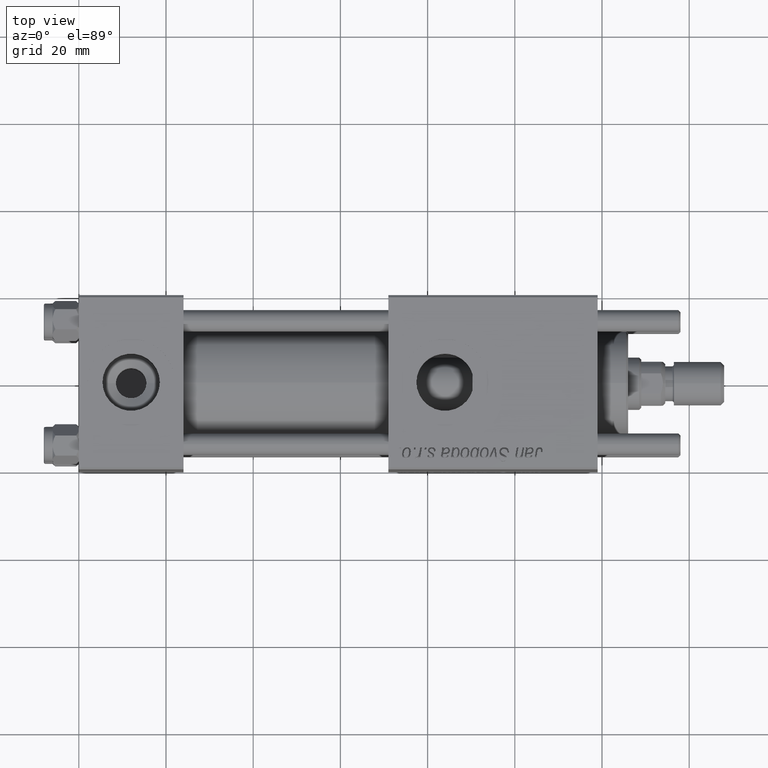
[diagram: clean part render]
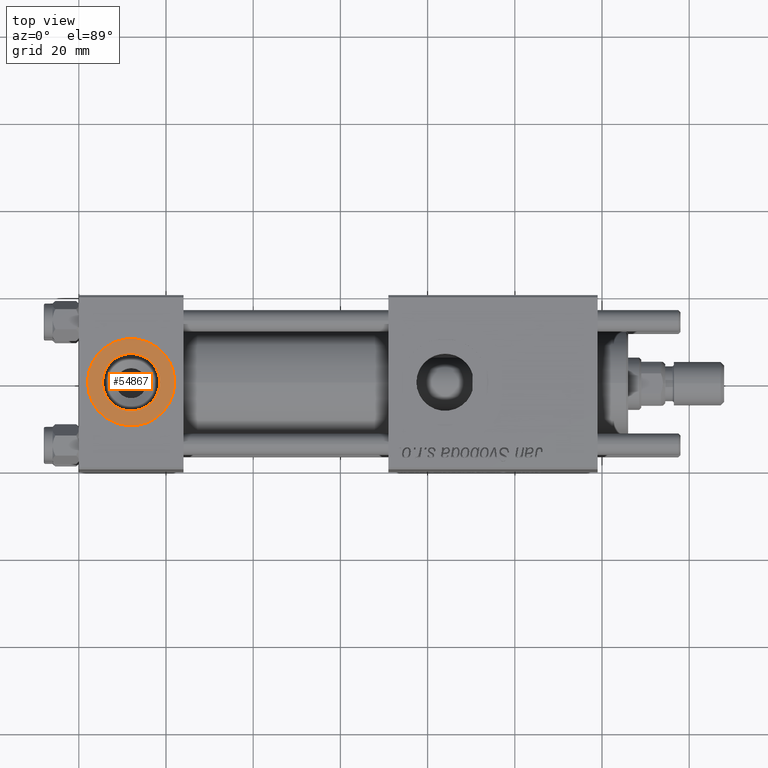
[diagram: same view with one face highlighted and labeled with its STEP entity id]
A machine part, top view. The second image highlights one B-rep face of the part: STEP entity #54867.
In plain terms, the highlighted planar face has unit normal (0, 0, 1).
Its self-contained STEP definition (entity closure, byte-faithful):
#1802 = CIRCLE ( 'NONE', #44569, 6.579999999999999183 ) ;
#2629 = CARTESIAN_POINT ( 'NONE',  ( 22.00000000000000000, 1.540743955509788682E-30, 19.79999999999999716 ) ) ;
#2769 = DIRECTION ( 'NONE',  ( 0.000000000000000000, 0.000000000000000000, 1.000000000000000000 ) ) ;
#2835 = ORIENTED_EDGE ( 'NONE', *, *, #16158, .T. ) ;
#3529 = CARTESIAN_POINT ( 'NONE',  ( 2.000000000000003553, 1.224646799147354440E-15, 19.79999999999999716 ) ) ;
#4314 = DIRECTION ( 'NONE',  ( 0.000000000000000000, 0.000000000000000000, 1.000000000000000000 ) ) ;
#4764 = AXIS2_PLACEMENT_3D ( 'NONE', #15725, #52034, #6486 ) ;
#6486 = DIRECTION ( 'NONE',  ( 1.000000000000000000, 0.000000000000000000, 0.000000000000000000 ) ) ;
#11426 = EDGE_LOOP ( 'NONE', ( #2835, #48219 ) ) ;
#11933 = CIRCLE ( 'NONE', #53773, 9.999999999999998224 ) ;
#13132 = VERTEX_POINT ( 'NONE', #29036 ) ;
#13561 = DIRECTION ( 'NONE',  ( 1.000000000000000000, 0.000000000000000000, 0.000000000000000000 ) ) ;
#15725 = CARTESIAN_POINT ( 'NONE',  ( 12.00000000000000000, 1.540743955509788682E-30, 19.79999999999999716 ) ) ;
#16158 = EDGE_CURVE ( 'NONE', #40100, #40343, #11933, .T. ) ;
#22316 = VERTEX_POINT ( 'NONE', #31807 ) ;
#24723 = CARTESIAN_POINT ( 'NONE',  ( 12.00000000000000000, 1.540743955509788682E-30, 19.79999999999999716 ) ) ;
#25150 = DIRECTION ( 'NONE',  ( 1.000000000000000000, 0.000000000000000000, -0.000000000000000000 ) ) ;
#28608 = DIRECTION ( 'NONE',  ( 0.000000000000000000, 0.000000000000000000, 1.000000000000000000 ) ) ;
#29036 = CARTESIAN_POINT ( 'NONE',  ( 5.420000000000000817, 8.058175938389596335E-16, 19.79999999999999716 ) ) ;
#29684 = AXIS2_PLACEMENT_3D ( 'NONE', #53214, #51226, #29745 ) ;
#29745 = DIRECTION ( 'NONE',  ( 1.000000000000000000, 0.000000000000000000, 0.000000000000000000 ) ) ;
#31807 = CARTESIAN_POINT ( 'NONE',  ( 18.57999999999999829, 1.540743955509788682E-30, 19.79999999999999716 ) ) ;
#31854 = ORIENTED_EDGE ( 'NONE', *, *, #47660, .F. ) ;
#35017 = EDGE_CURVE ( 'NONE', #40343, #40100, #36211, .T. ) ;
#36211 = CIRCLE ( 'NONE', #4764, 9.999999999999998224 ) ;
#38096 = EDGE_CURVE ( 'NONE', #13132, #22316, #55336, .T. ) ;
#38809 = PLANE ( 'NONE',  #40871 ) ;
#39118 = CARTESIAN_POINT ( 'NONE',  ( 12.00000000000000000, 1.540743955509788682E-30, 19.79999999999999716 ) ) ;
#40100 = VERTEX_POINT ( 'NONE', #2629 ) ;
#40343 = VERTEX_POINT ( 'NONE', #3529 ) ;
#40871 = AXIS2_PLACEMENT_3D ( 'NONE', #39118, #2769, #25150 ) ;
#43967 = DIRECTION ( 'NONE',  ( 1.000000000000000000, 0.000000000000000000, 0.000000000000000000 ) ) ;
#44569 = AXIS2_PLACEMENT_3D ( 'NONE', #58834, #4314, #13561 ) ;
#47660 = EDGE_CURVE ( 'NONE', #22316, #13132, #1802, .T. ) ;
#48219 = ORIENTED_EDGE ( 'NONE', *, *, #35017, .T. ) ;
#51226 = DIRECTION ( 'NONE',  ( 0.000000000000000000, 0.000000000000000000, 1.000000000000000000 ) ) ;
#52034 = DIRECTION ( 'NONE',  ( 0.000000000000000000, 0.000000000000000000, 1.000000000000000000 ) ) ;
#52795 = FACE_BOUND ( 'NONE', #56757, .T. ) ;
#53214 = CARTESIAN_POINT ( 'NONE',  ( 12.00000000000000000, 1.540743955509788682E-30, 19.79999999999999716 ) ) ;
#53773 = AXIS2_PLACEMENT_3D ( 'NONE', #24723, #28608, #43967 ) ;
#54867 = ADVANCED_FACE ( 'NONE', ( #52795, #56686 ), #38809, .T. ) ;
#55336 = CIRCLE ( 'NONE', #29684, 6.579999999999999183 ) ;
#56686 = FACE_OUTER_BOUND ( 'NONE', #11426, .T. ) ;
#56757 = EDGE_LOOP ( 'NONE', ( #31854, #58064 ) ) ;
#58064 = ORIENTED_EDGE ( 'NONE', *, *, #38096, .F. ) ;
#58834 = CARTESIAN_POINT ( 'NONE',  ( 12.00000000000000000, 1.540743955509788682E-30, 19.79999999999999716 ) ) ;